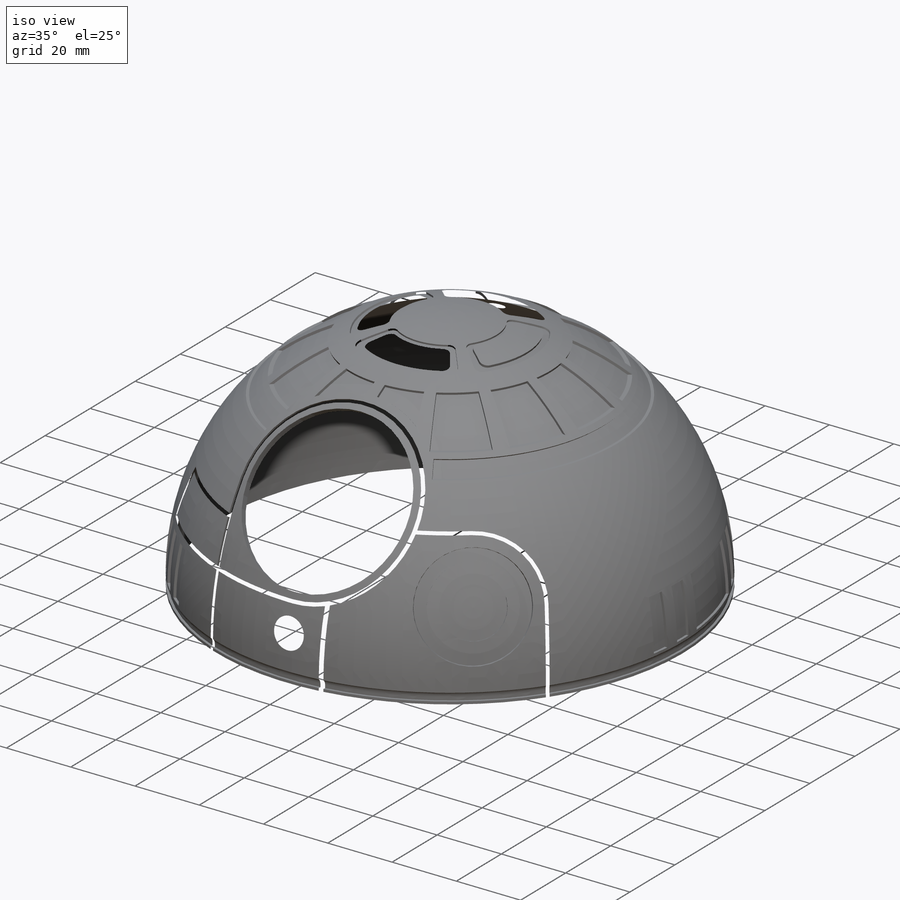
[diagram: iso view]
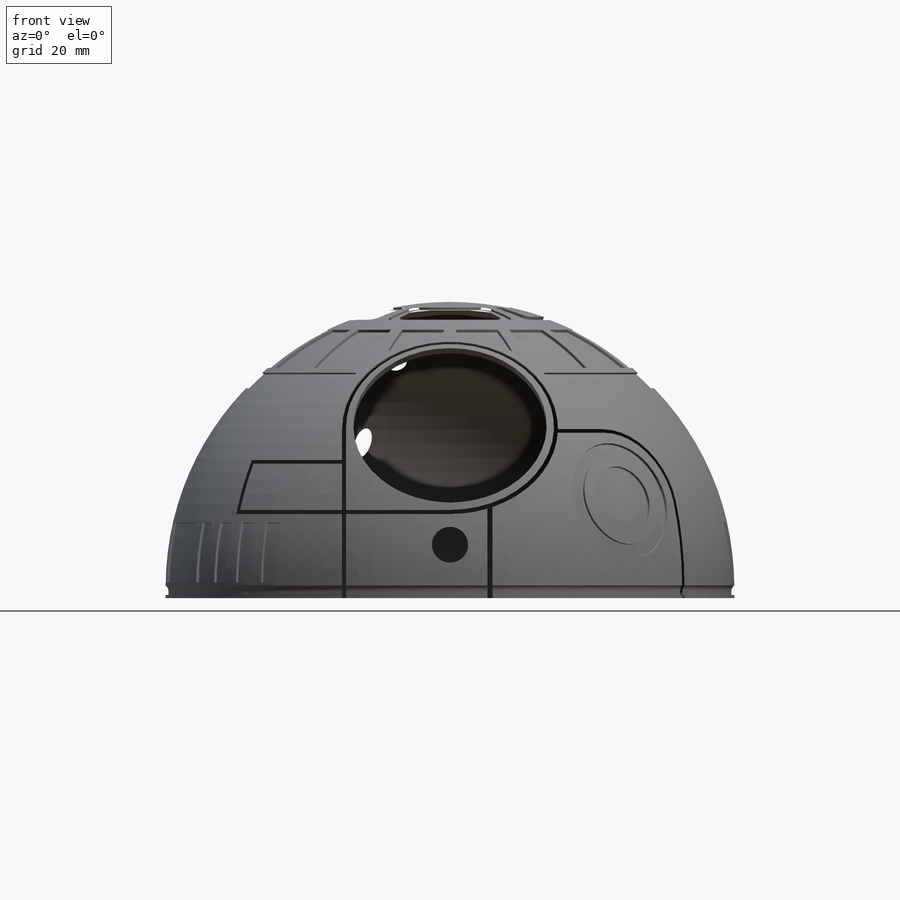
[diagram: front view]
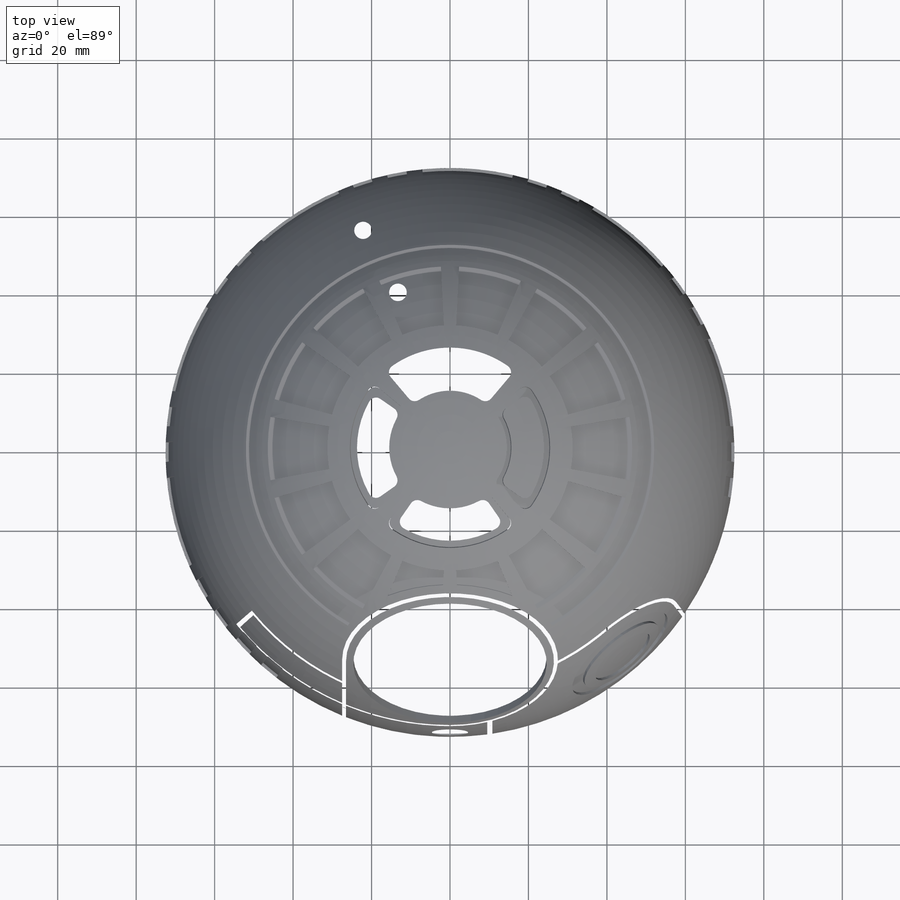
[diagram: top view]
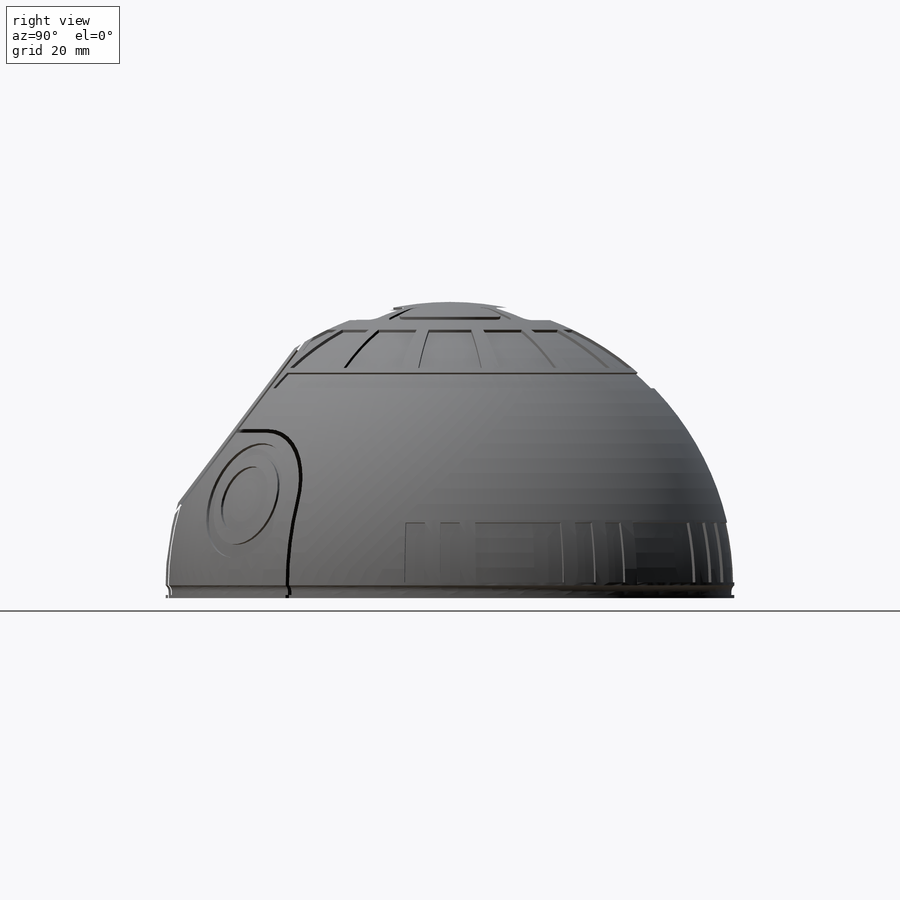
[diagram: right view]
SOLIDWORKS PART (.sldprt)
format: sldprt  version: not decoded by parser v0  size: 1,461,248 bytes
history: native  units: mm
features: sketch x23, cut_revolve x14, plane x8, pattern_circular x4, fillet x3, cut_extrude x3, revolve x2, extrude x2, material x1, shell x1 (+10 scaffold rows collapsed)
feature tree (71):
  scaffold x10  (default folders/planes/origin — collapsed)
  material  "材质 <未指定>"
  plane  "前视基准面"
  plane  "上视基准面"
  plane  "右视基准面"
  sketch  "草图1"  dims[D1=72.5mm]
  revolve  "旋转1"  Angle=360deg
  shell  "抽壳1"  Thickness=2mm
  sketch  "草图3"  dims[c1.D2=140.0mm c1.D3=25.0mm c1.D1=~104.892002mm c2.D1=37.0deg]
  cut_revolve  "切除-旋转1"  Angle=360deg
  sketch  "草图4"
  sketch  "草图5"  dims[D1=~277.070177mm]
  plane  "基准面4"
  sketch  "草图6"  dims[c1.D2=143.5mm c1.D3=8.75mm c1.D1=~93.850277mm c2.D1=18.0deg c2.D2=~33.949046mm]
  cut_revolve  "切除-旋转2"  Angle=360deg
  plane  "基准面5"
  sketch  "草图8"  dims[D1=~71.214465mm D2=~3.555779mm]
  cut_revolve  "切除-旋转3"  Angle=360deg
  sketch  "草图9"  dims[D1=0.0mm]
  extrude  "凸台-拉伸1"  Depth=3mm
  sketch  "草图10"  dims[D1=143.5mm D2=~103.692345mm]
  cut_revolve  "切除-旋转4"  Angle=4deg
  pattern_circular  "阵列(圆周)1"  Count=50 Angle=360deg
  sketch  "草图12"  dims[D2=~174.218047mm D1=0.0mm]
  cut_revolve  "切除-旋转5"  Angle=17deg
  pattern_circular  "阵列(圆周)2"  Count=10 Angle=360deg
  sketch  "草图13"  dims[c1.D1=~1.888157mm c1.D2=2.0mm c2.D1=~1.995223mm]
  cut_revolve  "切除-旋转6"  Angle=360deg
  fillet  "圆角1"  Radius=2mm
  sketch  "草图15"  dims[D1=~139.637411mm D2=~39.300728mm]
  cut_revolve  "切除-旋转7"  Angle=20deg
  pattern_circular  "阵列(圆周)3"  Count=14 Angle=360deg
  plane  "基准面7"
  sketch  "草图17"  dims[D1=53.0mm]
  extrude  "凸台-拉伸3"  [1 undecoded]
  sketch  "草图18"  dims[D1=~13.390498mm]
  cut_revolve  "切除-旋转8"  Angle=240deg
  sketch  "草图19"  dims[D1=~77.841621mm]
  cut_revolve  "切除-旋转9"  Angle=80deg
  sketch  "草图20"  dims[D1=143.5mm D2=~2.849109mm]
  revolve  "旋转2"  Angle=70deg
  fillet  "圆角2"  Radius=2mm
  pattern_circular  "阵列(圆周)6"  Count=4 Angle=360deg
  sketch  "草图22"  dims[D1=~75.70888mm]
  cut_revolve  "切除-旋转10"  Angle=360deg
  fillet  "圆角3"  Radius=1mm
  plane  "基准面8"
  sketch  "草图23"  dims[c1.D1=55.0mm c1.D2=53.0mm c1.D3=5.0mm c1.D4=~6.322705mm c2.D3=~27.195543mm c2.D4=~53.888887mm c3.D3=~1.001068mm]
  cut_extrude  "切除-拉伸1"  [1 undecoded]
  sketch  "草图24"  dims[D2=~1.098195mm D1=0.0mm]
  cut_revolve  "切除-旋转11"  Angle=50deg
  sketch  "草图25"  dims[D1=~120.040942mm]
  cut_revolve  "切除-旋转12"  Angle=1deg
  sketch  "草图26"  dims[D2=~96.96992mm D1=0.0mm]
  cut_revolve  "切除-旋转13"  [1 undecoded]
  plane  "基准面9"
  sketch  "草图27"  dims[c1.D1=~36.765378mm c1.D2=1.0mm c2.D1=1.0mm]
  cut_extrude  "切除-拉伸2"  [1 undecoded]
  sketch  "草图28"  dims[D2=~117.094077mm D1=0.0mm]
  cut_revolve  "切除-旋转14"  [1 undecoded]
  sketch  "草图29"  dims[D1=4.5mm]
  cut_extrude  "切除-拉伸3"  Depth=224mm
decode coverage: 46 of 52 modeling features carry decoded parameters
note: ~ marks probable driven/reference dimensions
note: 5 parameter values undecoded
summary: no parameter record found for 5 features
note: suppression state not decoded; provenance and decode notes live in map.json
